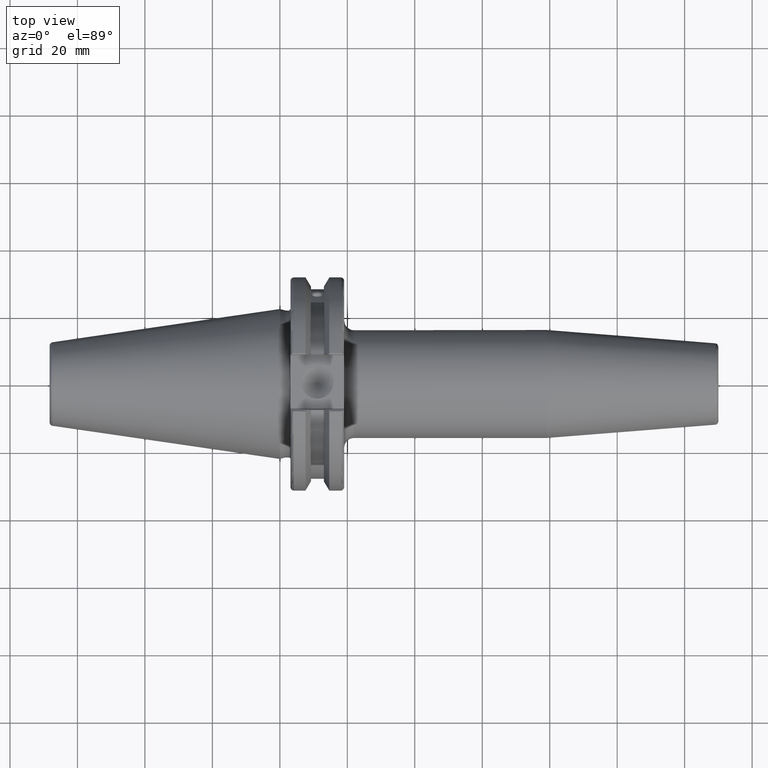
[diagram: clean part render]
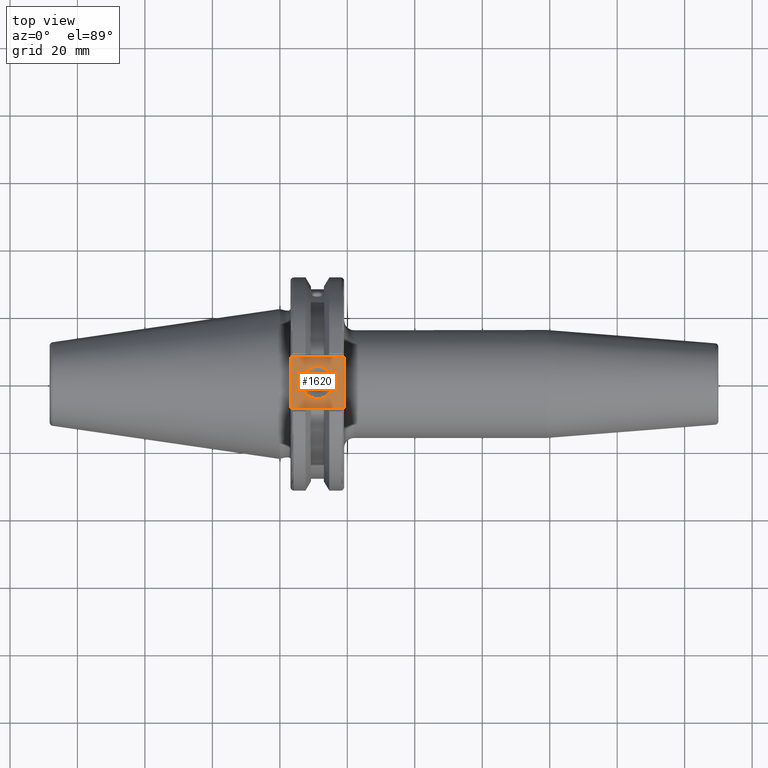
[diagram: same view with one face highlighted and labeled with its STEP entity id]
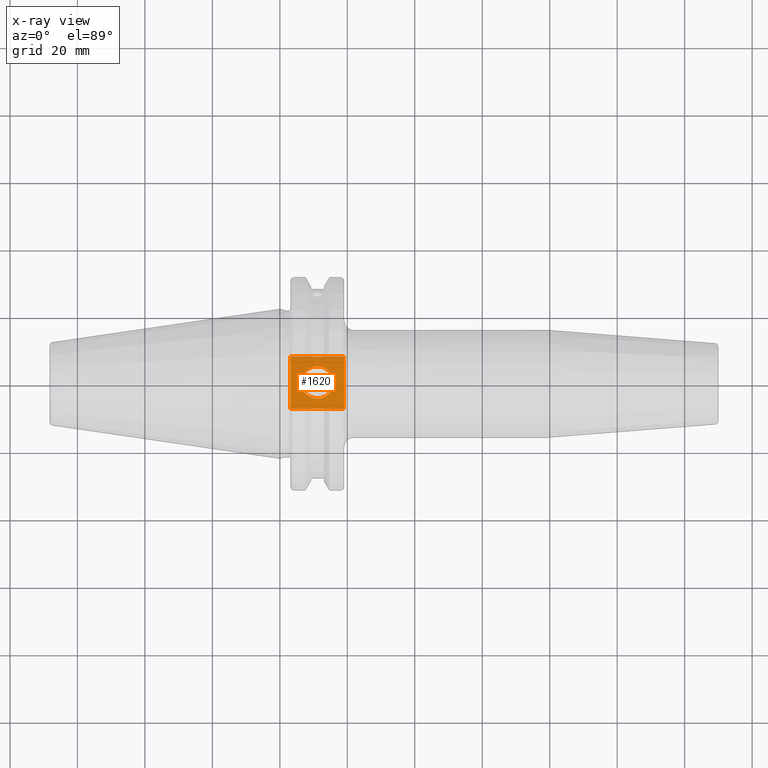
[diagram: x-ray of the same camera — body ghosted, the highlighted face saturated]
A machine part, top view. The second image highlights one B-rep face of the part: STEP entity #1620.
The next image is the same camera in x-ray: the body ghosted, the highlighted face saturated — about 0% of this face is hidden behind the body in this view.
In plain terms, the highlighted planar face has unit normal (0, 0, 1).
Its self-contained STEP definition (entity closure, byte-faithful):
#77=FACE_BOUND('',#367,.T.);
#113=PLANE('',#1826);
#259=FACE_OUTER_BOUND('',#366,.T.);
#366=EDGE_LOOP('',(#1490,#1491,#1492,#1493));
#367=EDGE_LOOP('',(#1494));
#383=LINE('',#2361,#481);
#428=LINE('',#2804,#526);
#456=LINE('',#3033,#554);
#458=LINE('',#3036,#556);
#481=VECTOR('',#1896,10.);
#526=VECTOR('',#2127,10.);
#554=VECTOR('',#2221,10.);
#556=VECTOR('',#2225,10.);
#637=CIRCLE('',#1814,4.7625);
#663=VERTEX_POINT('',#2358);
#664=VERTEX_POINT('',#2360);
#754=VERTEX_POINT('',#2801);
#755=VERTEX_POINT('',#2803);
#801=VERTEX_POINT('',#3072);
#827=EDGE_CURVE('',#663,#664,#383,.T.);
#950=EDGE_CURVE('',#754,#755,#428,.T.);
#1013=EDGE_CURVE('',#664,#754,#456,.T.);
#1015=EDGE_CURVE('',#755,#663,#458,.T.);
#1030=EDGE_CURVE('',#801,#801,#637,.T.);
#1490=ORIENTED_EDGE('',*,*,#1013,.F.);
#1491=ORIENTED_EDGE('',*,*,#827,.F.);
#1492=ORIENTED_EDGE('',*,*,#1015,.F.);
#1493=ORIENTED_EDGE('',*,*,#950,.F.);
#1494=ORIENTED_EDGE('',*,*,#1030,.T.);
#1620=ADVANCED_FACE('',(#259,#77),#113,.T.);
#1814=AXIS2_PLACEMENT_3D('',#3073,#2260,#2261);
#1826=AXIS2_PLACEMENT_3D('',#3086,#2285,#2286);
#1896=DIRECTION('',(0.,-1.,0.));
#2127=DIRECTION('',(0.,1.,0.));
#2221=DIRECTION('',(-1.,1.31581988103722E-16,0.));
#2225=DIRECTION('',(1.,0.,0.));
#2260=DIRECTION('center_axis',(0.,0.,-1.));
#2261=DIRECTION('ref_axis',(1.,0.,0.));
#2285=DIRECTION('center_axis',(0.,0.,1.));
#2286=DIRECTION('ref_axis',(1.,0.,0.));
#2358=CARTESIAN_POINT('',(19.05,7.69,25.));
#2360=CARTESIAN_POINT('',(19.05,-7.69,25.));
#2361=CARTESIAN_POINT('',(19.05,0.,25.));
#2801=CARTESIAN_POINT('',(3.175,-7.68999999999999,25.));
#2803=CARTESIAN_POINT('',(3.175,7.69,25.));
#2804=CARTESIAN_POINT('',(3.175,15.875,25.));
#3033=CARTESIAN_POINT('',(9.44125,-7.69,25.));
#3036=CARTESIAN_POINT('',(17.87875,7.69,25.));
#3072=CARTESIAN_POINT('',(6.3716,-5.83238038093927E-16,25.));
#3073=CARTESIAN_POINT('Origin',(11.1341,0.,25.));
#3086=CARTESIAN_POINT('Origin',(15.7075,0.,25.));